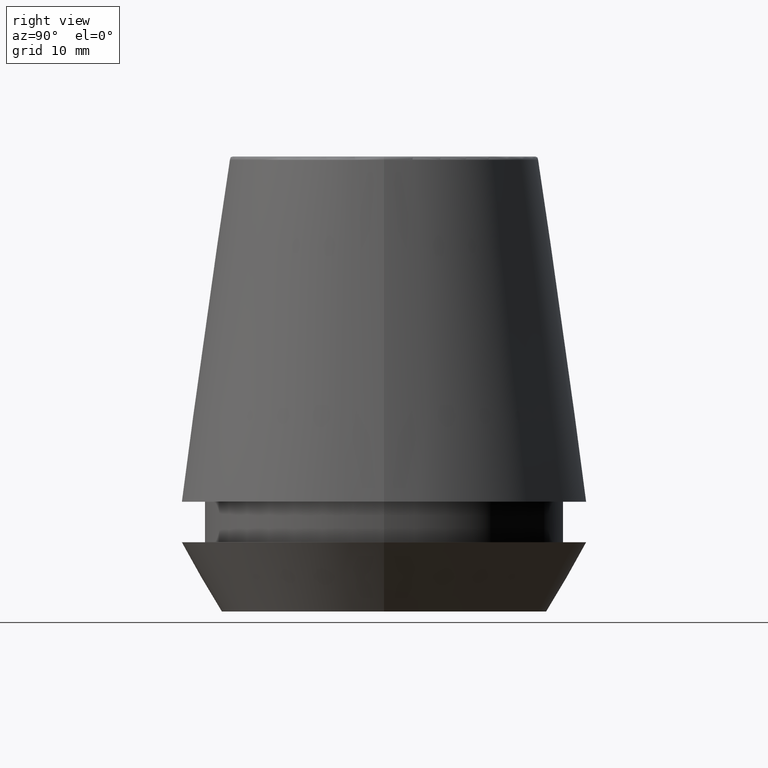
[diagram: clean part render]
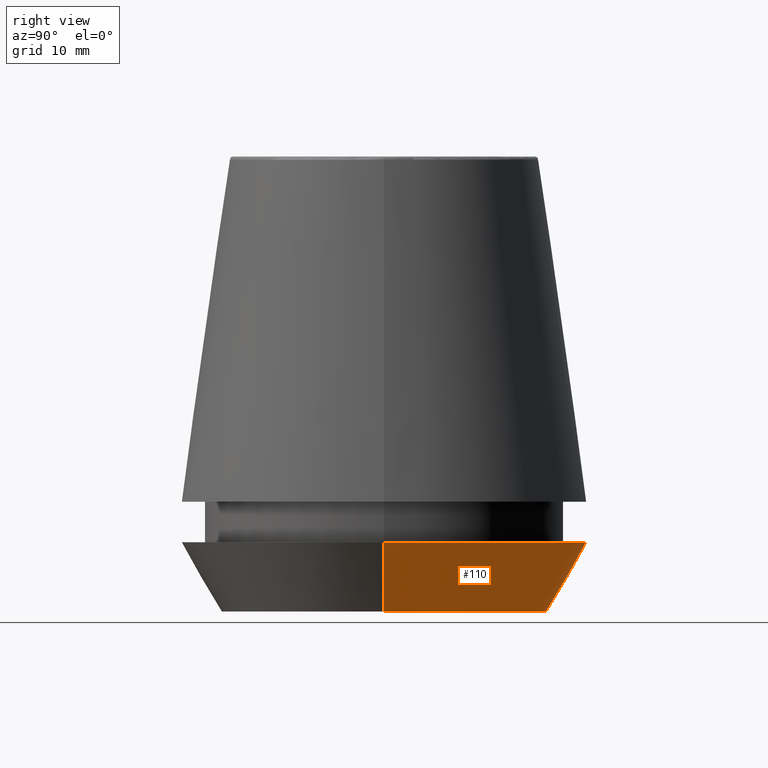
[diagram: same view with one face highlighted and labeled with its STEP entity id]
A machine part, right view. The second image highlights one B-rep face of the part: STEP entity #110.
In plain terms, the highlighted conical surface has half-angle 30 deg.
Its self-contained STEP definition (entity closure, byte-faithful):
#32 = CIRCLE ( 'NONE', #238, 20.50000000000000000 ) ;
#47 = CARTESIAN_POINT ( 'NONE',  ( -16.45854811567268100, 2.263058382549599700E-015, 0.0000000000000000000 ) ) ;
#49 = EDGE_CURVE ( 'NONE', #311, #60, #201, .T. ) ;
#50 = DIRECTION ( 'NONE',  ( -0.0000000000000000000, -0.0000000000000000000, 1.000000000000000000 ) ) ;
#51 = VERTEX_POINT ( 'NONE', #203 ) ;
#56 = CARTESIAN_POINT ( 'NONE',  ( 16.45854811567268100, 0.0000000000000000000, 0.0000000000000000000 ) ) ;
#60 = VERTEX_POINT ( 'NONE', #348 ) ;
#62 = ORIENTED_EDGE ( 'NONE', *, *, #49, .F. ) ;
#101 = ORIENTED_EDGE ( 'NONE', *, *, #345, .T. ) ;
#110 = ADVANCED_FACE ( 'NONE', ( #237 ), #382, .T. ) ;
#132 = DIRECTION ( 'NONE',  ( 1.000000000000000000, 0.0000000000000000000, 0.0000000000000000000 ) ) ;
#157 = VERTEX_POINT ( 'NONE', #47 ) ;
#158 = EDGE_CURVE ( 'NONE', #311, #157, #164, .T. ) ;
#160 = DIRECTION ( 'NONE',  ( 0.4999999999999941700, 0.0000000000000000000, 0.8660254037844420400 ) ) ;
#164 = CIRCLE ( 'NONE', #257, 16.45854811567268100 ) ;
#168 = DIRECTION ( 'NONE',  ( -0.0000000000000000000, -0.0000000000000000000, 1.000000000000000000 ) ) ;
#172 = DIRECTION ( 'NONE',  ( -0.0000000000000000000, -0.0000000000000000000, 1.000000000000000000 ) ) ;
#201 = LINE ( 'NONE', #56, #351 ) ;
#203 = CARTESIAN_POINT ( 'NONE',  ( -20.50000000000000000, 2.510525938252074100E-015, 7.000000000000006200 ) ) ;
#222 = CARTESIAN_POINT ( 'NONE',  ( 0.0000000000000000000, 0.0000000000000000000, 7.000000000000006200 ) ) ;
#235 = ORIENTED_EDGE ( 'NONE', *, *, #158, .T. ) ;
#237 = FACE_OUTER_BOUND ( 'NONE', #298, .T. ) ;
#238 = AXIS2_PLACEMENT_3D ( 'NONE', #222, #50, #255 ) ;
#249 = VECTOR ( 'NONE', #367, 1000.000000000000000 ) ;
#255 = DIRECTION ( 'NONE',  ( 1.000000000000000000, 0.0000000000000000000, 0.0000000000000000000 ) ) ;
#257 = AXIS2_PLACEMENT_3D ( 'NONE', #343, #172, #378 ) ;
#259 = LINE ( 'NONE', #332, #249 ) ;
#296 = ORIENTED_EDGE ( 'NONE', *, *, #310, .F. ) ;
#298 = EDGE_LOOP ( 'NONE', ( #235, #101, #296, #62 ) ) ;
#301 = AXIS2_PLACEMENT_3D ( 'NONE', #336, #168, #132 ) ;
#310 = EDGE_CURVE ( 'NONE', #60, #51, #32, .T. ) ;
#311 = VERTEX_POINT ( 'NONE', #344 ) ;
#332 = CARTESIAN_POINT ( 'NONE',  ( -16.45854811567268100, 2.015590826847124800E-015, 0.0000000000000000000 ) ) ;
#336 = CARTESIAN_POINT ( 'NONE',  ( 0.0000000000000000000, 0.0000000000000000000, 0.0000000000000000000 ) ) ;
#343 = CARTESIAN_POINT ( 'NONE',  ( 0.0000000000000000000, 0.0000000000000000000, 0.0000000000000000000 ) ) ;
#344 = CARTESIAN_POINT ( 'NONE',  ( 16.45854811567268100, 0.0000000000000000000, 0.0000000000000000000 ) ) ;
#345 = EDGE_CURVE ( 'NONE', #157, #51, #259, .T. ) ;
#348 = CARTESIAN_POINT ( 'NONE',  ( 20.50000000000000000, 0.0000000000000000000, 7.000000000000006200 ) ) ;
#351 = VECTOR ( 'NONE', #160, 1000.000000000000000 ) ;
#367 = DIRECTION ( 'NONE',  ( -0.4999999999999941700, 6.123233995736694500E-017, 0.8660254037844420400 ) ) ;
#378 = DIRECTION ( 'NONE',  ( 1.000000000000000000, 0.0000000000000000000, 0.0000000000000000000 ) ) ;
#382 = CONICAL_SURFACE ( 'NONE', #301, 16.45854811567268100, 0.5235987755982921500 ) ;